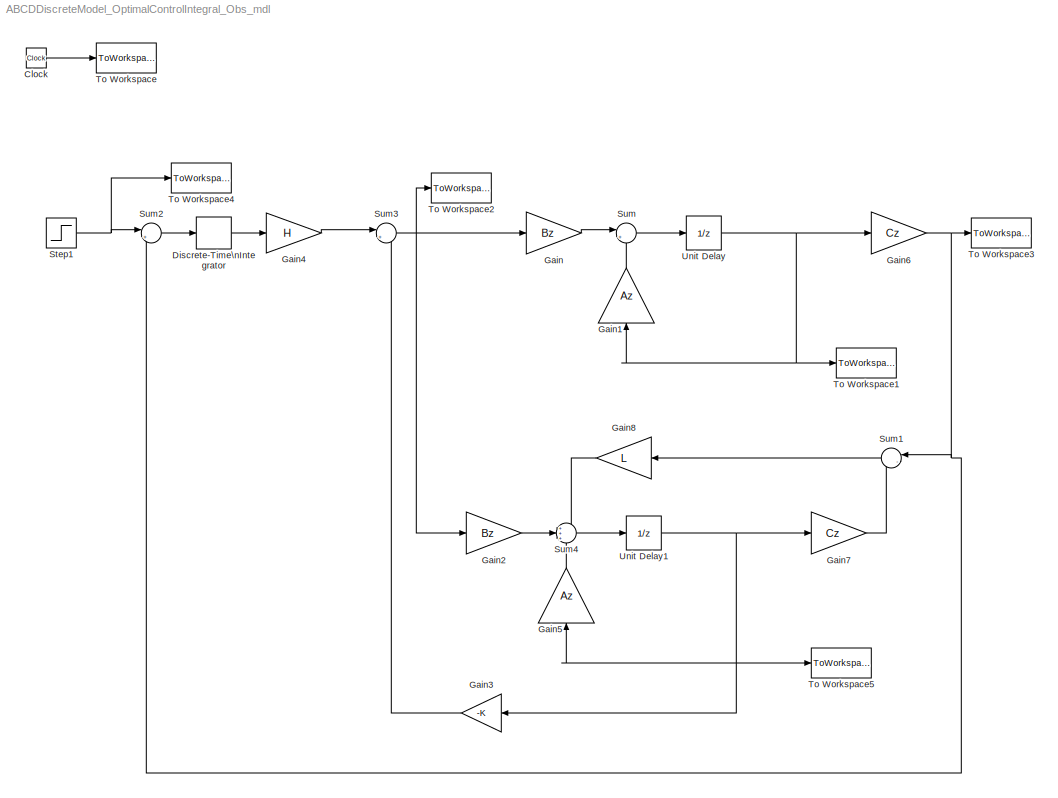
MODEL ABCDDiscreteModel_OptimalControlIntegral_Obs_mdl
KIND model
BLOCK [Clock] Clock
BLOCK [DiscreteIntegrator] Discrete-Time\nIntegrator
  ICPrevOutput = DiscIntNeverNeededParam
  ICPrevScaledInput = DiscIntNeverNeededParam
  Ports = [1, 1]
  SampleTime = Ts
BLOCK [Gain] Gain
  Gain = Bz
  Multiplication = Matrix(K*u)
  OutDataTypeMode = Inherit via internal rule
  ParameterDataTypeMode = Inherit via internal rule
  SaturateOnIntegerOverflow = off
BLOCK [Gain] Gain1
  Gain = Az
  Multiplication = Matrix(K*u)
  OutDataTypeMode = Inherit via internal rule
  ParameterDataTypeMode = Inherit via internal rule
  SaturateOnIntegerOverflow = off
BLOCK [Gain] Gain2
  Gain = Bz
  Multiplication = Matrix(K*u)
  OutDataTypeMode = Inherit via internal rule
  ParameterDataTypeMode = Inherit via internal rule
  SaturateOnIntegerOverflow = off
BLOCK [Gain] Gain3
  Gain = -K
  Multiplication = Matrix(K*u)
  OutDataTypeMode = Inherit via internal rule
  ParameterDataTypeMode = Inherit via internal rule
  SaturateOnIntegerOverflow = off
BLOCK [Gain] Gain4
  Gain = H
  Multiplication = Matrix(K*u)
  OutDataTypeMode = Inherit via internal rule
  ParameterDataTypeMode = Inherit via internal rule
  SaturateOnIntegerOverflow = off
BLOCK [Gain] Gain5
  Gain = Az
  Multiplication = Matrix(K*u)
  OutDataTypeMode = Inherit via internal rule
  ParameterDataTypeMode = Inherit via internal rule
  SaturateOnIntegerOverflow = off
BLOCK [Gain] Gain6
  Gain = Cz
  Multiplication = Matrix(K*u)
  OutDataTypeMode = Inherit via internal rule
  ParameterDataTypeMode = Inherit via internal rule
  SaturateOnIntegerOverflow = off
BLOCK [Gain] Gain7
  Gain = Cz
  Multiplication = Matrix(K*u)
  OutDataTypeMode = Inherit via internal rule
  ParameterDataTypeMode = Inherit via internal rule
  SaturateOnIntegerOverflow = off
BLOCK [Gain] Gain8
  Gain = L
  Multiplication = Matrix(K*u)
  OutDataTypeMode = Inherit via internal rule
  ParameterDataTypeMode = Inherit via internal rule
  SaturateOnIntegerOverflow = off
BLOCK [Step] Step1
  After = yp
  SampleTime = 0
BLOCK [Sum] Sum
  IconShape = round
  InputSameDT = off
  Inputs = |++
  OutDataTypeMode = Inherit via internal rule
  Ports = [2, 1]
  SaturateOnIntegerOverflow = off
BLOCK [Sum] Sum1
  IconShape = round
  InputSameDT = off
  Inputs = |-+
  OutDataTypeMode = Inherit via internal rule
  Ports = [2, 1]
  SaturateOnIntegerOverflow = off
BLOCK [Sum] Sum2
  IconShape = round
  InputSameDT = off
  Inputs = |+-
  OutDataTypeMode = Inherit via internal rule
  Ports = [2, 1]
  SaturateOnIntegerOverflow = off
BLOCK [Sum] Sum3
  IconShape = round
  InputSameDT = off
  Inputs = |++
  OutDataTypeMode = Inherit via internal rule
  Ports = [2, 1]
  SaturateOnIntegerOverflow = off
BLOCK [Sum] Sum4
  IconShape = round
  InputSameDT = off
  Inputs = +++
  OutDataTypeMode = Inherit via internal rule
  Ports = [3, 1]
  SaturateOnIntegerOverflow = off
BLOCK [ToWorkspace] To Workspace
  MaxDataPoints = inf
  Ports = [1]
  SampleTime = -1
  VariableName = time
BLOCK [ToWorkspace] To Workspace1
  MaxDataPoints = inf
  Ports = [1]
  SampleTime = -1
  VariableName = X
BLOCK [ToWorkspace] To Workspace2
  MaxDataPoints = inf
  Ports = [1]
  SampleTime = -1
  VariableName = u
BLOCK [ToWorkspace] To Workspace3
  MaxDataPoints = inf
  Ports = [1]
  SampleTime = -1
  VariableName = y
BLOCK [ToWorkspace] To Workspace4
  MaxDataPoints = inf
  Ports = [1]
  SampleTime = -1
  VariableName = yd
BLOCK [ToWorkspace] To Workspace5
  MaxDataPoints = inf
  Ports = [1]
  SampleTime = -1
  VariableName = Xs
BLOCK [UnitDelay] Unit Delay
  SampleTime = Ts
  X0 = X0
BLOCK [UnitDelay] Unit Delay1
  SampleTime = Ts
LINE Clock:1 -> To Workspace:1
LINE Discrete-Time\nIntegrator:1 -> Gain4:1
LINE Gain1:1 -> Sum:2
LINE Gain2:1 -> Sum4:2
LINE Gain3:1 -> Sum3:2
LINE Gain4:1 -> Sum3:1
LINE Gain5:1 -> Sum4:3
NET Gain6:1 -> Sum1:1, Sum2:2, To Workspace3:1
LINE Gain7:1 -> Sum1:2
LINE Gain8:1 -> Sum4:1
LINE Gain:1 -> Sum:1
NET Step1:1 -> Sum2:1, To Workspace4:1
LINE Sum1:1 -> Gain8:1
LINE Sum2:1 -> Discrete-Time\nIntegrator:1
NET Sum3:1 -> Gain2:1, Gain:1, To Workspace2:1
LINE Sum4:1 -> Unit Delay1:1
LINE Sum:1 -> Unit Delay:1
NET Unit Delay1:1 -> Gain3:1, Gain5:1, Gain7:1, To Workspace5:1
NET Unit Delay:1 -> Gain1:1, Gain6:1, To Workspace1:1
note: NET lines group one-source signal fan-out (src -> all destinations, sorted); 1:1 wires keep LINE
